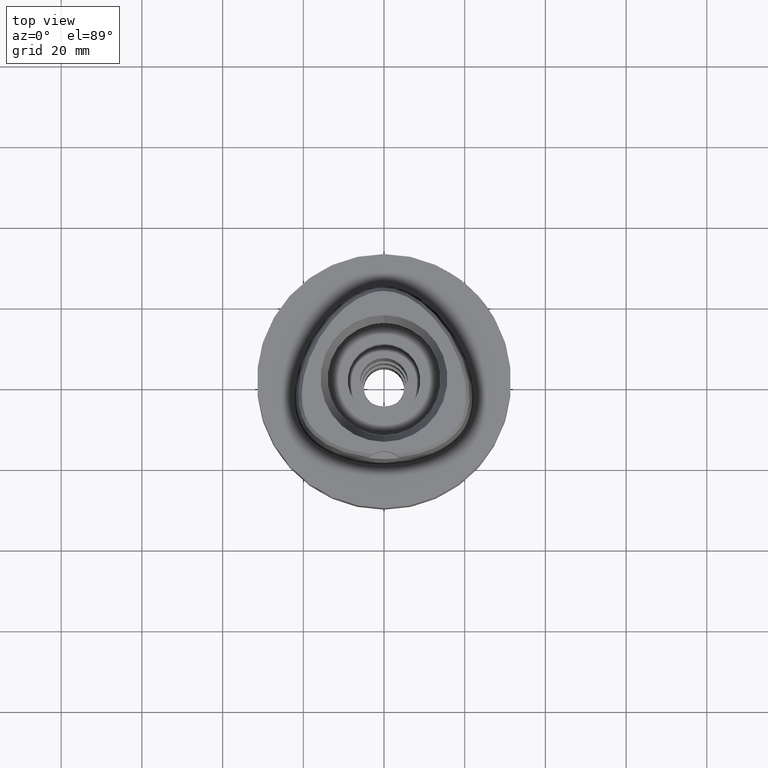
[diagram: clean part render]
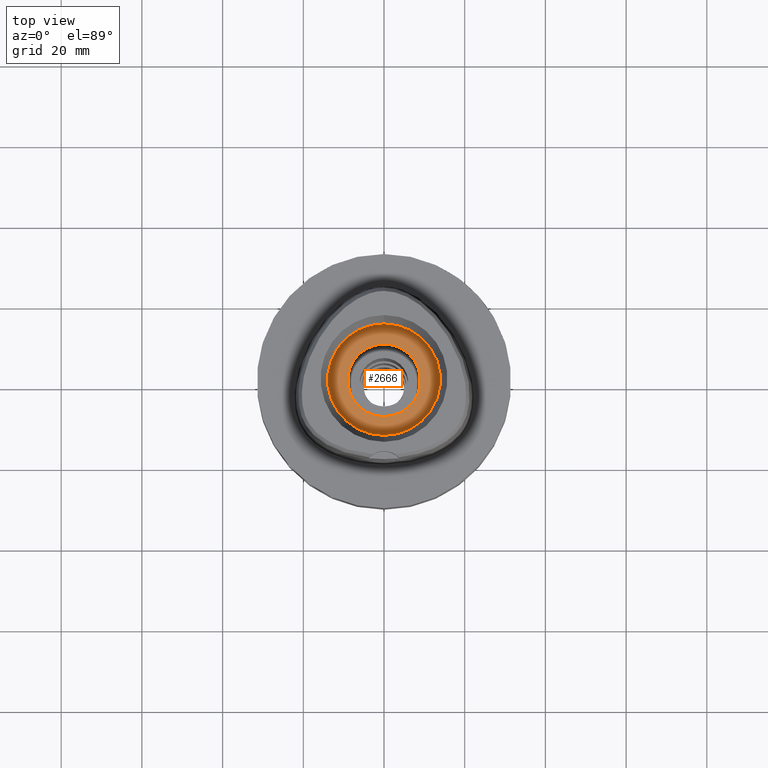
[diagram: same view with one face highlighted and labeled with its STEP entity id]
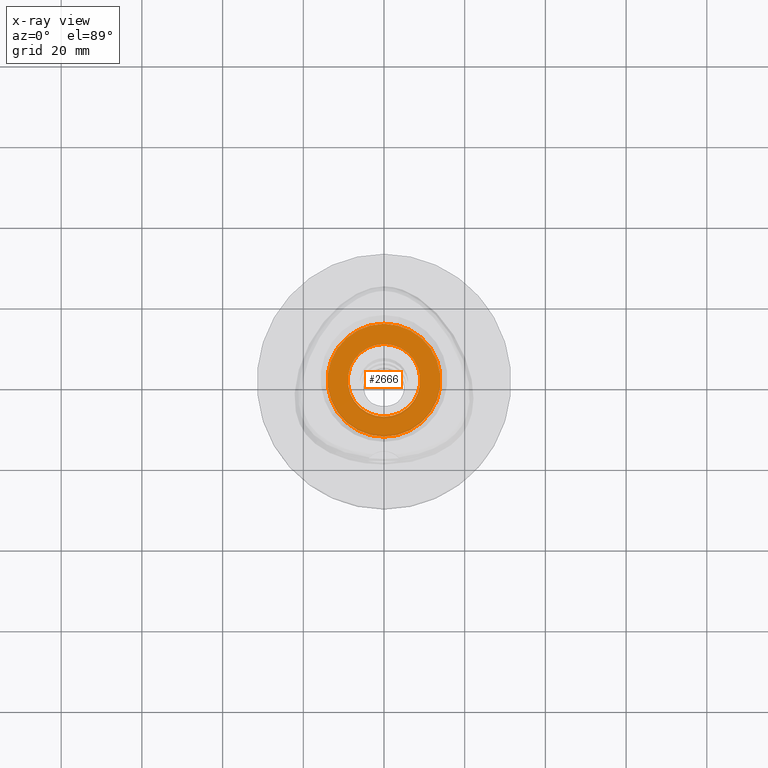
[diagram: x-ray of the same camera — body ghosted, the highlighted face saturated]
A machine part, top view. The second image highlights one B-rep face of the part: STEP entity #2666.
The next image is the same camera in x-ray: the body ghosted, the highlighted face saturated — about 0% of this face is hidden behind the body in this view.
In plain terms, the highlighted planar face has unit normal (0, 0, -1).
Its self-contained STEP definition (entity closure, byte-faithful):
#802=CARTESIAN_POINT('',(0.E0,0.E0,1.1E1));
#803=DIRECTION('',(0.E0,0.E0,-1.E0));
#804=DIRECTION('',(0.E0,1.E0,0.E0));
#805=AXIS2_PLACEMENT_3D('',#802,#803,#804);
#810=CARTESIAN_POINT('',(0.E0,0.E0,1.1E1));
#811=DIRECTION('',(0.E0,0.E0,-1.E0));
#812=DIRECTION('',(0.E0,-1.E0,0.E0));
#813=AXIS2_PLACEMENT_3D('',#810,#811,#812);
#818=CARTESIAN_POINT('',(0.E0,0.E0,1.1E1));
#819=DIRECTION('',(0.E0,0.E0,1.E0));
#820=DIRECTION('',(0.E0,1.E0,0.E0));
#821=AXIS2_PLACEMENT_3D('',#818,#819,#820);
#826=CARTESIAN_POINT('',(0.E0,0.E0,1.1E1));
#827=DIRECTION('',(0.E0,0.E0,1.E0));
#828=DIRECTION('',(0.E0,-1.E0,0.E0));
#829=AXIS2_PLACEMENT_3D('',#826,#827,#828);
#1572=CARTESIAN_POINT('',(0.E0,9.E0,1.1E1));
#1573=VERTEX_POINT('',#1572);
#1574=CARTESIAN_POINT('',(0.E0,-9.E0,1.1E1));
#1575=VERTEX_POINT('',#1574);
#1576=CARTESIAN_POINT('',(0.E0,1.4E1,1.1E1));
#1577=CARTESIAN_POINT('',(0.E0,-1.4E1,1.1E1));
#1578=VERTEX_POINT('',#1576);
#1579=VERTEX_POINT('',#1577);
#2651=CARTESIAN_POINT('',(0.E0,0.E0,1.1E1));
#2652=DIRECTION('',(0.E0,0.E0,-1.E0));
#2653=DIRECTION('',(0.E0,-1.E0,0.E0));
#2654=AXIS2_PLACEMENT_3D('',#2651,#2652,#2653);
#2655=PLANE('',#2654);
#2657=ORIENTED_EDGE('',*,*,#2656,.T.);
#2659=ORIENTED_EDGE('',*,*,#2658,.T.);
#2660=EDGE_LOOP('',(#2657,#2659));
#2661=FACE_OUTER_BOUND('',#2660,.F.);
#2662=ORIENTED_EDGE('',*,*,#2633,.T.);
#2663=ORIENTED_EDGE('',*,*,#2646,.T.);
#2664=EDGE_LOOP('',(#2662,#2663));
#2665=FACE_BOUND('',#2664,.F.);
#806=CIRCLE('',#805,1.4E1);
#814=CIRCLE('',#813,1.4E1);
#822=CIRCLE('',#821,9.E0);
#830=CIRCLE('',#829,9.E0);
#2633=EDGE_CURVE('',#1573,#1575,#822,.T.);
#2646=EDGE_CURVE('',#1575,#1573,#830,.T.);
#2656=EDGE_CURVE('',#1578,#1579,#806,.T.);
#2658=EDGE_CURVE('',#1579,#1578,#814,.T.);
#2666=ADVANCED_FACE('',(#2661,#2665),#2655,.F.);